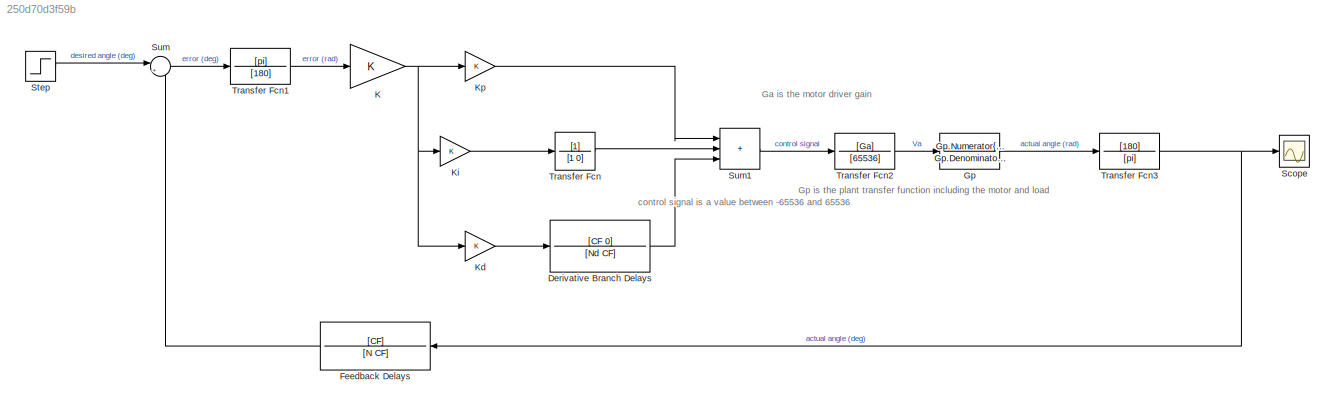
MODEL slx_250d70d3f59b
KIND model
CONFIG AbsTol = auto
CONFIG EnableMultiTasking = off
CONFIG FixedStep = auto
CONFIG MaxStep = auto
CONFIG MinStep = auto
CONFIG RelTol = 1e-3
CONFIG SampleTimeConstraint = Unconstrained
CONFIG SolverName = VariableStepAuto
CONFIG StartTime = 0.0
CONFIG StopTime = 10.0
BLOCK [TransferFcn] Derivative Branch Delays
  Denominator = [Nd CF]
  Numerator = [CF 0]
BLOCK [TransferFcn] Feedback Delays
  Denominator = [N CF]
  Numerator = [CF]
BLOCK [TransferFcn] Gp
  Denominator = Gp.Denominator{1}
  Numerator = Gp.Numerator{1}
BLOCK [Gain] K
BLOCK [Gain] Kd
BLOCK [Gain] Ki
BLOCK [Gain] Kp
BLOCK [Scope] Scope
  Floating = off
  GraphicalSettings = {"GraphicalSettings":{"LegacySettings":true,"Style":{"Style":{"PlotType":"Auto"}}}}
  NumInputPorts = 1
  WasSavedAsWebScope = on
BLOCK [Step] Step
  SampleTime = 0
BLOCK [Sum] Sum
  Inputs = |+-
BLOCK [Sum] Sum1
  IconShape = rectangular
  Inputs = |+|+|+
BLOCK [TransferFcn] Transfer Fcn
  Denominator = [1 0]
BLOCK [TransferFcn] Transfer Fcn1
  Denominator = [180]
  Numerator = [pi]
BLOCK [TransferFcn] Transfer Fcn2
  Denominator = [65536]
  Numerator = [Ga]
BLOCK [TransferFcn] Transfer Fcn3
  Denominator = [pi]
  Numerator = [180]
ANNOTATION (root): control signal is a value between -65536 and 65536
ANNOTATION (root): Gp is the plant transfer function including the motor and load
ANNOTATION (root): Ga is the motor driver gain
LINE Derivative Branch Delays:1 -> Sum1:3
LINE Feedback Delays:1 -> Sum:2
LINE Gp:1 -> Transfer Fcn3:1
NET K:1 -> Kd:1, Ki:1, Kp:1
LINE Kd:1 -> Derivative Branch Delays:1
LINE Ki:1 -> Transfer Fcn:1
LINE Kp:1 -> Sum1:1
LINE Step:1 -> Sum:1
LINE Sum1:1 -> Transfer Fcn2:1
LINE Sum:1 -> Transfer Fcn1:1
LINE Transfer Fcn1:1 -> K:1
LINE Transfer Fcn2:1 -> Gp:1
NET Transfer Fcn3:1 -> Feedback Delays:1, Scope:1
LINE Transfer Fcn:1 -> Sum1:2
note: NET lines group one-source signal fan-out (src -> all destinations, sorted); 1:1 wires keep LINE
